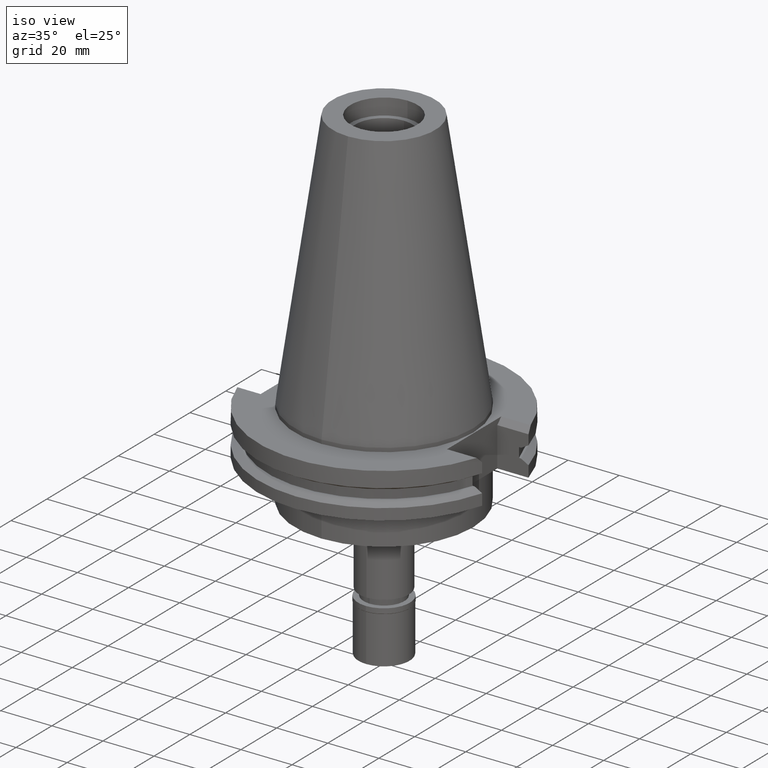
[diagram: clean part render]
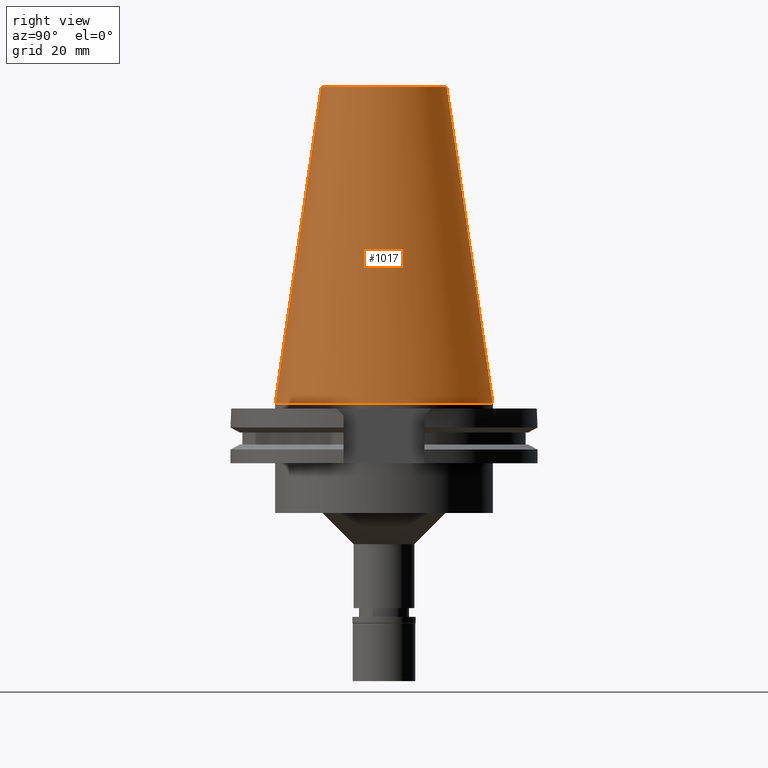
[diagram: tour spotlight — one face highlighted and labeled with its STEP entity id]
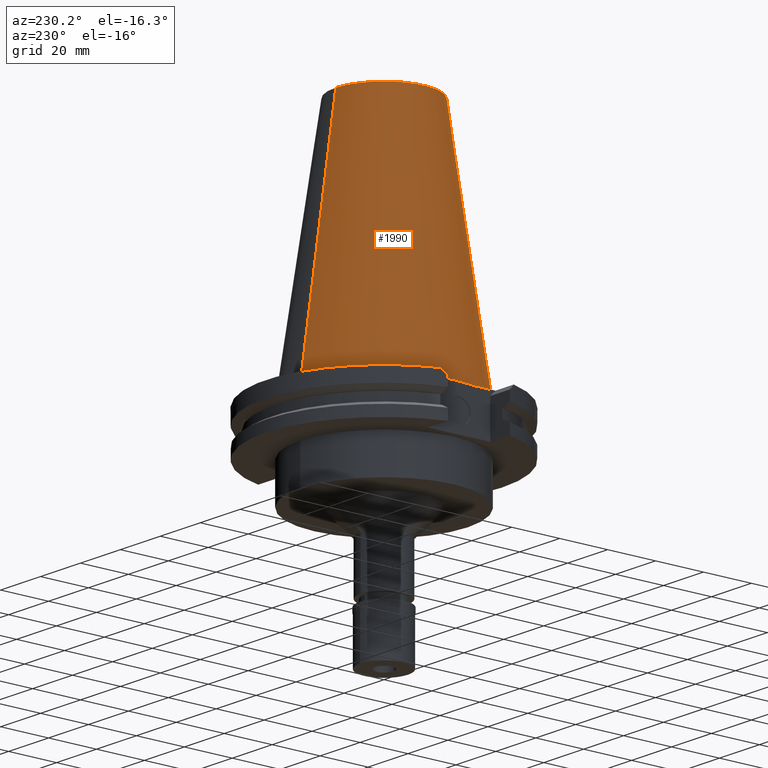
[diagram: tour spotlight — one face highlighted and labeled with its STEP entity id]
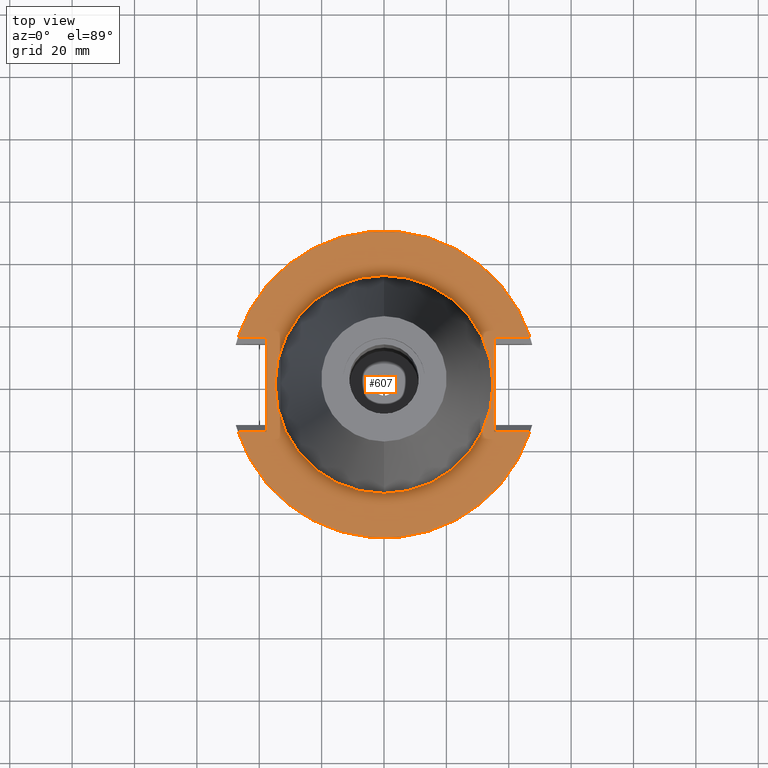
[diagram: tour spotlight — one face highlighted and labeled with its STEP entity id]
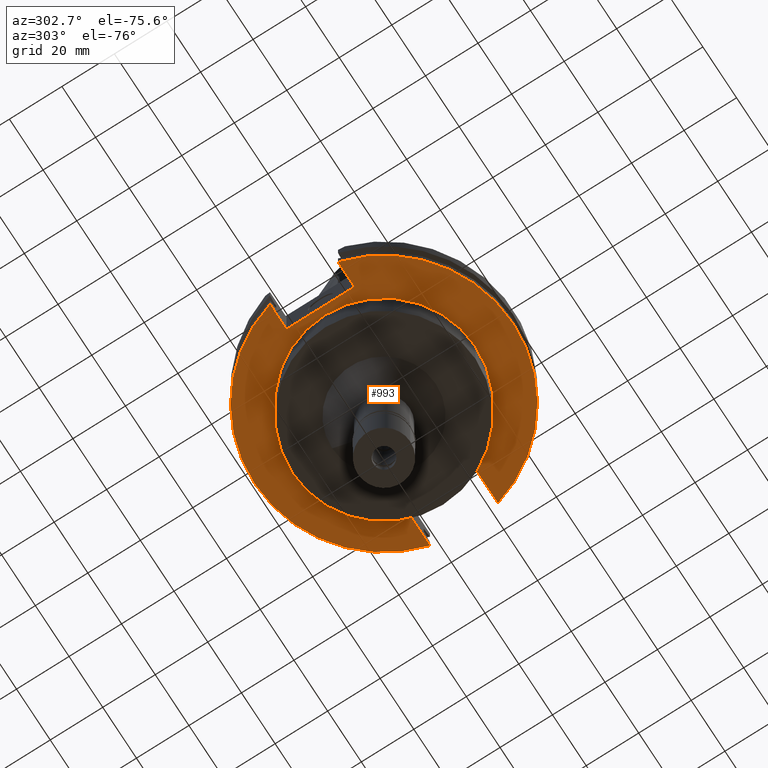
[diagram: tour spotlight — one face highlighted and labeled with its STEP entity id]
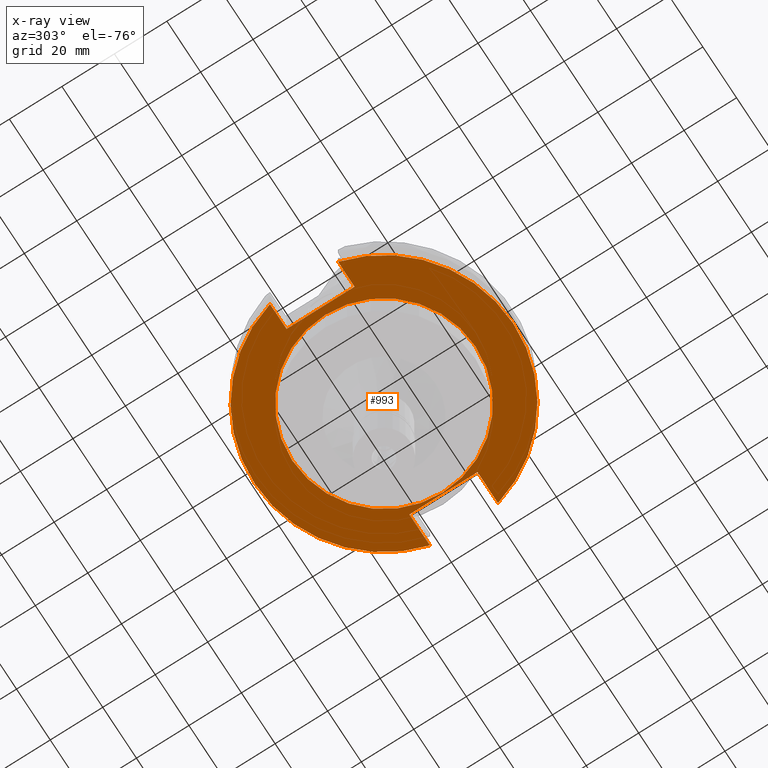
[diagram: x-ray of the same camera — body ghosted, this tour face saturated]
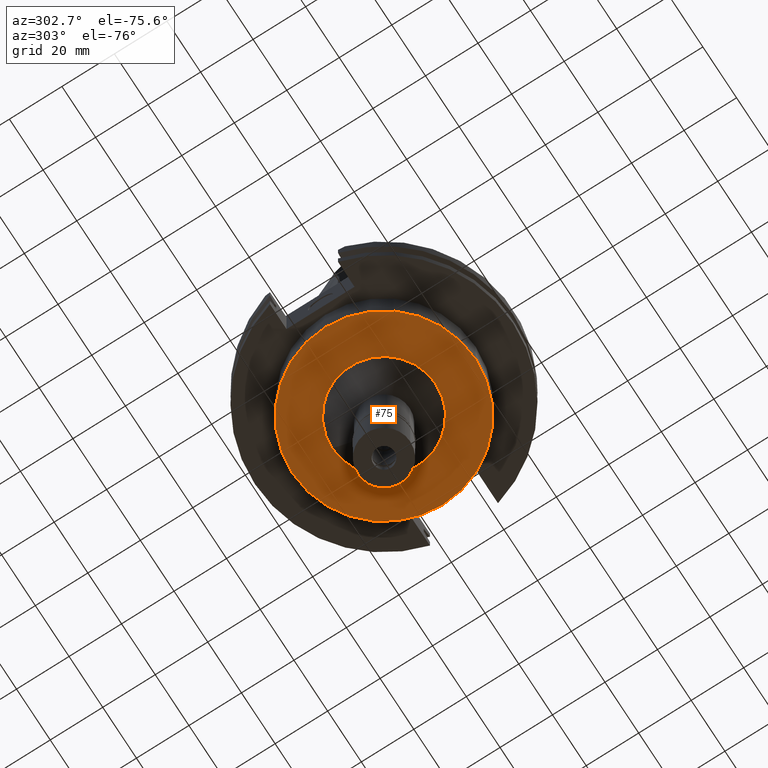
[diagram: tour spotlight — one face highlighted and labeled with its STEP entity id]
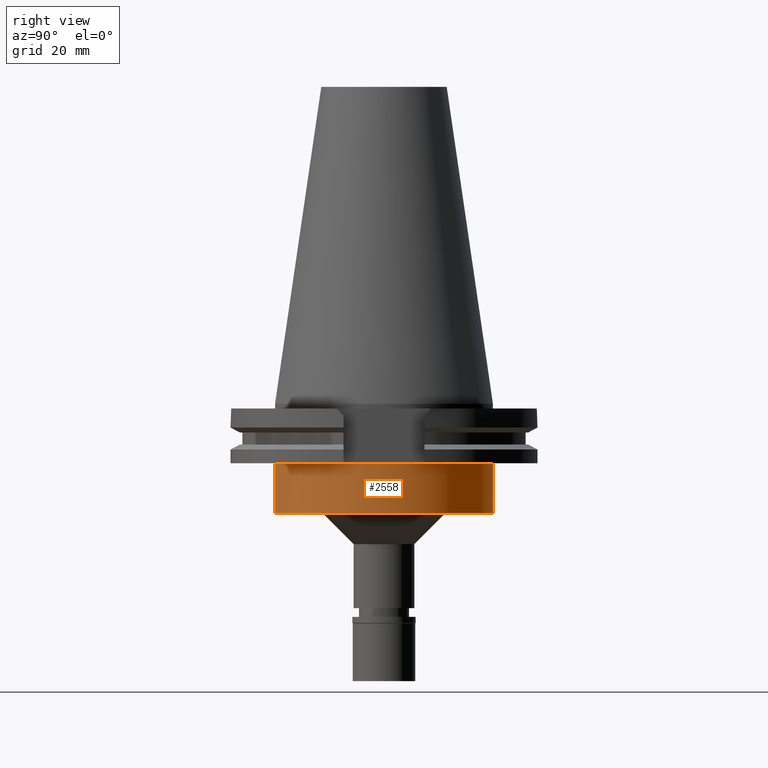
[diagram: tour spotlight — one face highlighted and labeled with its STEP entity id]
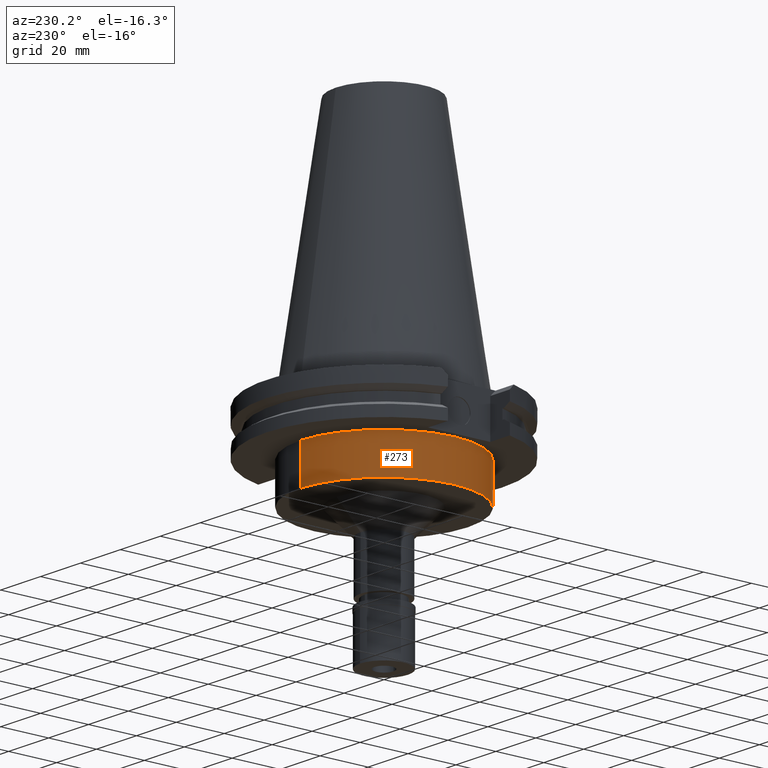
[diagram: tour spotlight — one face highlighted and labeled with its STEP entity id]
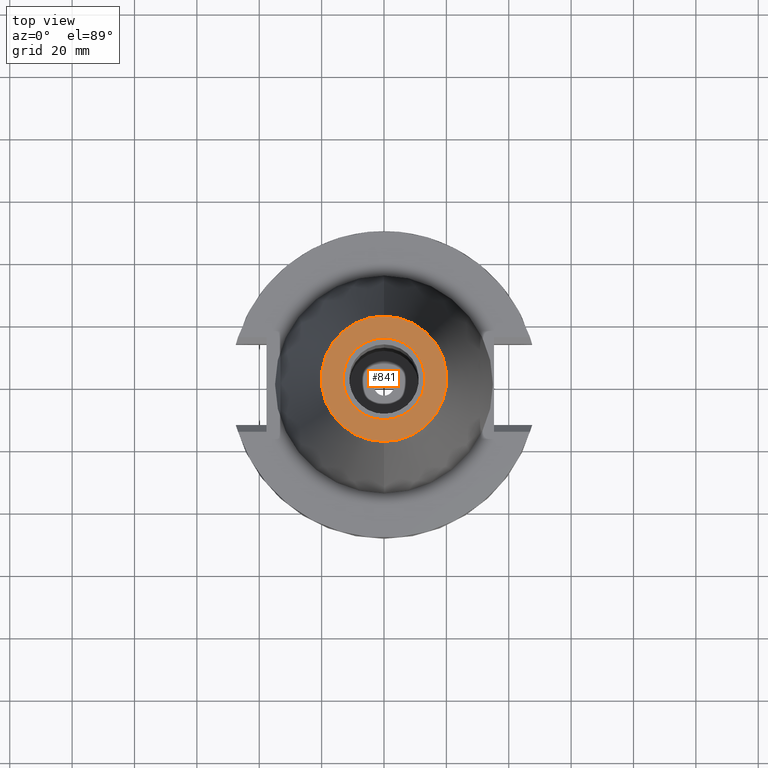
[diagram: tour spotlight — one face highlighted and labeled with its STEP entity id]
A machine part: a face-by-face anatomy tour. The part has 91 B-rep faces; the first image is the clean iso view, then the 8 largest visible faces are spotlighted one at a time (largest first), each with its STEP entity span.

Face 1 — right view, entity #1017. In plain terms, the highlighted conical surface has half-angle 8.297 deg.
Definition (entity closure, byte-faithful):
#56 = AXIS2_PLACEMENT_3D ( 'NONE', #1172, #3252, #1150 ) ;
#122 = FACE_OUTER_BOUND ( 'NONE', #179, .T. ) ;
#133 = DIRECTION ( 'NONE',  ( 0.0000000000000000000, -0.1443069799456937474, -0.9895329683941577192 ) ) ;
#136 = AXIS2_PLACEMENT_3D ( 'NONE', #2501, #1760, #1237 ) ;
#179 = EDGE_LOOP ( 'NONE', ( #1053, #690, #2577, #858 ) ) ;
#185 = DIRECTION ( 'NONE',  ( 0.0000000000000000000, 0.1443069799456937474, -0.9895329683941577192 ) ) ;
#365 = EDGE_CURVE ( 'NONE', #1043, #2549, #1960, .T. ) ;
#562 = VERTEX_POINT ( 'NONE', #2753 ) ;
#591 = EDGE_CURVE ( 'NONE', #562, #2549, #703, .T. ) ;
#648 = VECTOR ( 'NONE', #185, 1000.000000000000114 ) ;
#690 = ORIENTED_EDGE ( 'NONE', *, *, #365, .T. ) ;
#703 = CIRCLE ( 'NONE', #136, 34.92499999999999716 ) ;
#858 = ORIENTED_EDGE ( 'NONE', *, *, #3038, .F. ) ;
#946 = CARTESIAN_POINT ( 'NONE',  ( 0.0000000000000000000, -20.10832422387000307, 101.5999999999999943 ) ) ;
#1010 = AXIS2_PLACEMENT_3D ( 'NONE', #1129, #2386, #1408 ) ;
#1017 = ADVANCED_FACE ( 'NONE', ( #122 ), #1857, .T. ) ;
#1043 = VERTEX_POINT ( 'NONE', #3181 ) ;
#1053 = ORIENTED_EDGE ( 'NONE', *, *, #1922, .T. ) ;
#1129 = CARTESIAN_POINT ( 'NONE',  ( 0.0000000000000000000, 1.846767373113999857E-14, 50.79999999999999716 ) ) ;
#1150 = DIRECTION ( 'NONE',  ( 0.0000000000000000000, 1.000000000000000000, 0.0000000000000000000 ) ) ;
#1172 = CARTESIAN_POINT ( 'NONE',  ( 0.0000000000000000000, 1.846767373113999857E-14, 101.5999999999999943 ) ) ;
#1237 = DIRECTION ( 'NONE',  ( 0.0000000000000000000, 1.000000000000000000, 0.0000000000000000000 ) ) ;
#1315 = CARTESIAN_POINT ( 'NONE',  ( 0.0000000000000000000, 20.10832422388000040, 101.5999999999999943 ) ) ;
#1382 = CARTESIAN_POINT ( 'NONE',  ( 0.0000000000000000000, -34.92499999999999716, 4.192202140985000042E-13 ) ) ;
#1408 = DIRECTION ( 'NONE',  ( 0.0000000000000000000, -1.000000000000000000, 0.0000000000000000000 ) ) ;
#1435 = LINE ( 'NONE', #2722, #648 ) ;
#1569 = VERTEX_POINT ( 'NONE', #1315 ) ;
#1760 = DIRECTION ( 'NONE',  ( 0.0000000000000000000, 0.0000000000000000000, -1.000000000000000000 ) ) ;
#1857 = CONICAL_SURFACE ( 'NONE', #1010, 27.51666211194000056, 0.1448125860318199565 ) ;
#1922 = EDGE_CURVE ( 'NONE', #1569, #1043, #2086, .T. ) ;
#1960 = LINE ( 'NONE', #946, #2932 ) ;
#2086 = CIRCLE ( 'NONE', #56, 20.10832422388000040 ) ;
#2386 = DIRECTION ( 'NONE',  ( 0.0000000000000000000, 0.0000000000000000000, -1.000000000000000000 ) ) ;
#2501 = CARTESIAN_POINT ( 'NONE',  ( 0.0000000000000000000, 1.846767373113999857E-14, 7.389644451905000534E-13 ) ) ;
#2549 = VERTEX_POINT ( 'NONE', #1382 ) ;
#2577 = ORIENTED_EDGE ( 'NONE', *, *, #591, .F. ) ;
#2722 = CARTESIAN_POINT ( 'NONE',  ( 0.0000000000000000000, 20.10832422387000307, 101.5999999999999943 ) ) ;
#2753 = CARTESIAN_POINT ( 'NONE',  ( 0.0000000000000000000, 34.92499999999999716, 4.192202140985000042E-13 ) ) ;
#2932 = VECTOR ( 'NONE', #133, 1000.000000000000114 ) ;
#3038 = EDGE_CURVE ( 'NONE', #1569, #562, #1435, .T. ) ;
#3181 = CARTESIAN_POINT ( 'NONE',  ( 0.0000000000000000000, -20.10832422388000040, 101.5999999999999943 ) ) ;
#3252 = DIRECTION ( 'NONE',  ( 0.0000000000000000000, 0.0000000000000000000, -1.000000000000000000 ) ) ;

Face 2 — auxiliary view, entity #1990. In plain terms, the highlighted conical surface has half-angle 8.297 deg.
Definition (entity closure, byte-faithful):
#111 = AXIS2_PLACEMENT_3D ( 'NONE', #3027, #733, #2243 ) ;
#133 = DIRECTION ( 'NONE',  ( 0.0000000000000000000, -0.1443069799456937474, -0.9895329683941577192 ) ) ;
#174 = ORIENTED_EDGE ( 'NONE', *, *, #3038, .T. ) ;
#185 = DIRECTION ( 'NONE',  ( 0.0000000000000000000, 0.1443069799456937474, -0.9895329683941577192 ) ) ;
#365 = EDGE_CURVE ( 'NONE', #1043, #2549, #1960, .T. ) ;
#389 = CONICAL_SURFACE ( 'NONE', #2200, 27.51666211194000056, 0.1448125860318199565 ) ;
#482 = DIRECTION ( 'NONE',  ( 0.0000000000000000000, 0.0000000000000000000, -1.000000000000000000 ) ) ;
#562 = VERTEX_POINT ( 'NONE', #2753 ) ;
#648 = VECTOR ( 'NONE', #185, 1000.000000000000114 ) ;
#651 = CIRCLE ( 'NONE', #111, 34.92499999999999716 ) ;
#733 = DIRECTION ( 'NONE',  ( 0.0000000000000000000, 0.0000000000000000000, -1.000000000000000000 ) ) ;
#882 = ORIENTED_EDGE ( 'NONE', *, *, #1536, .T. ) ;
#918 = CARTESIAN_POINT ( 'NONE',  ( 0.0000000000000000000, 1.846767373113999857E-14, 50.79999999999999716 ) ) ;
#946 = CARTESIAN_POINT ( 'NONE',  ( 0.0000000000000000000, -20.10832422387000307, 101.5999999999999943 ) ) ;
#1043 = VERTEX_POINT ( 'NONE', #3181 ) ;
#1315 = CARTESIAN_POINT ( 'NONE',  ( 0.0000000000000000000, 20.10832422388000040, 101.5999999999999943 ) ) ;
#1382 = CARTESIAN_POINT ( 'NONE',  ( 0.0000000000000000000, -34.92499999999999716, 4.192202140985000042E-13 ) ) ;
#1435 = LINE ( 'NONE', #2722, #648 ) ;
#1536 = EDGE_CURVE ( 'NONE', #1043, #1569, #2157, .T. ) ;
#1569 = VERTEX_POINT ( 'NONE', #1315 ) ;
#1955 = DIRECTION ( 'NONE',  ( 0.0000000000000000000, -1.000000000000000000, 0.0000000000000000000 ) ) ;
#1960 = LINE ( 'NONE', #946, #2932 ) ;
#1990 = ADVANCED_FACE ( 'NONE', ( #2988 ), #389, .T. ) ;
#2083 = EDGE_CURVE ( 'NONE', #2549, #562, #651, .T. ) ;
#2105 = ORIENTED_EDGE ( 'NONE', *, *, #2083, .F. ) ;
#2157 = CIRCLE ( 'NONE', #3193, 20.10832422388000040 ) ;
#2200 = AXIS2_PLACEMENT_3D ( 'NONE', #918, #3213, #1955 ) ;
#2243 = DIRECTION ( 'NONE',  ( 0.0000000000000000000, -1.000000000000000000, 0.0000000000000000000 ) ) ;
#2284 = CARTESIAN_POINT ( 'NONE',  ( 0.0000000000000000000, 1.846767373113999857E-14, 101.5999999999999943 ) ) ;
#2410 = EDGE_LOOP ( 'NONE', ( #2105, #2837, #882, #174 ) ) ;
#2549 = VERTEX_POINT ( 'NONE', #1382 ) ;
#2722 = CARTESIAN_POINT ( 'NONE',  ( 0.0000000000000000000, 20.10832422387000307, 101.5999999999999943 ) ) ;
#2753 = CARTESIAN_POINT ( 'NONE',  ( 0.0000000000000000000, 34.92499999999999716, 4.192202140985000042E-13 ) ) ;
#2827 = DIRECTION ( 'NONE',  ( 0.0000000000000000000, -1.000000000000000000, 0.0000000000000000000 ) ) ;
#2837 = ORIENTED_EDGE ( 'NONE', *, *, #365, .F. ) ;
#2932 = VECTOR ( 'NONE', #133, 1000.000000000000114 ) ;
#2988 = FACE_OUTER_BOUND ( 'NONE', #2410, .T. ) ;
#3027 = CARTESIAN_POINT ( 'NONE',  ( 0.0000000000000000000, 1.846767373113999857E-14, 7.389644451905000534E-13 ) ) ;
#3038 = EDGE_CURVE ( 'NONE', #1569, #562, #1435, .T. ) ;
#3181 = CARTESIAN_POINT ( 'NONE',  ( 0.0000000000000000000, -20.10832422388000040, 101.5999999999999943 ) ) ;
#3193 = AXIS2_PLACEMENT_3D ( 'NONE', #2284, #482, #2827 ) ;
#3213 = DIRECTION ( 'NONE',  ( 0.0000000000000000000, 0.0000000000000000000, -1.000000000000000000 ) ) ;

Face 3 — top view, entity #607. In plain terms, the highlighted planar face has unit normal (0, 0, -1).
Definition (entity closure, byte-faithful):
#2 = DIRECTION ( 'NONE',  ( 0.0000000000000000000, -1.000000000000000000, 0.0000000000000000000 ) ) ;
#43 = VERTEX_POINT ( 'NONE', #472 ) ;
#121 = EDGE_CURVE ( 'NONE', #43, #2502, #711, .T. ) ;
#169 = DIRECTION ( 'NONE',  ( 0.0000000000000000000, -1.000000000000000000, 0.0000000000000000000 ) ) ;
#176 = DIRECTION ( 'NONE',  ( 0.0000000000000000000, 1.000000000000000000, 0.0000000000000000000 ) ) ;
#182 = CIRCLE ( 'NONE', #2048, 49.21249999999999858 ) ;
#192 = CARTESIAN_POINT ( 'NONE',  ( 0.0000000000000000000, 2.580636967502999935E-14, -1.500000000000000000 ) ) ;
#246 = DIRECTION ( 'NONE',  ( 0.0000000000000000000, 0.0000000000000000000, 1.000000000000000000 ) ) ;
#268 = LINE ( 'NONE', #1273, #2174 ) ;
#270 = EDGE_CURVE ( 'NONE', #43, #938, #1015, .T. ) ;
#280 = DIRECTION ( 'NONE',  ( 1.000000000000000000, 0.0000000000000000000, 0.0000000000000000000 ) ) ;
#380 = VERTEX_POINT ( 'NONE', #2443 ) ;
#410 = VERTEX_POINT ( 'NONE', #1945 ) ;
#435 = ORIENTED_EDGE ( 'NONE', *, *, #270, .F. ) ;
#472 = CARTESIAN_POINT ( 'NONE',  ( -37.67999999999999972, -15.15499999999999936, -1.500000000000000000 ) ) ;
#516 = AXIS2_PLACEMENT_3D ( 'NONE', #3006, #246, #1809 ) ;
#602 = VECTOR ( 'NONE', #1099, 1000.000000000000000 ) ;
#607 = ADVANCED_FACE ( 'NONE', ( #2047, #1510 ), #3299, .F. ) ;
#620 = CIRCLE ( 'NONE', #2497, 34.92499999999999716 ) ;
#653 = EDGE_CURVE ( 'NONE', #410, #1161, #2162, .T. ) ;
#684 = DIRECTION ( 'NONE',  ( 0.0000000000000000000, 0.0000000000000000000, 1.000000000000000000 ) ) ;
#711 = LINE ( 'NONE', #1187, #923 ) ;
#850 = CARTESIAN_POINT ( 'NONE',  ( 35.27000000000000313, 15.15499999999999936, -1.500000000000000000 ) ) ;
#889 = ORIENTED_EDGE ( 'NONE', *, *, #936, .T. ) ;
#923 = VECTOR ( 'NONE', #1429, 1000.000000000000000 ) ;
#936 = EDGE_CURVE ( 'NONE', #2757, #2770, #1048, .T. ) ;
#938 = VERTEX_POINT ( 'NONE', #2585 ) ;
#997 = CARTESIAN_POINT ( 'NONE',  ( 0.0000000000000000000, 1.206277097159999845E-14, -1.500000000000000000 ) ) ;
#1005 = EDGE_CURVE ( 'NONE', #2757, #1297, #268, .T. ) ;
#1015 = LINE ( 'NONE', #3043, #2873 ) ;
#1019 = ORIENTED_EDGE ( 'NONE', *, *, #653, .F. ) ;
#1048 = LINE ( 'NONE', #3085, #2369 ) ;
#1062 = CARTESIAN_POINT ( 'NONE',  ( -37.67999999999999972, 15.15499999999999936, -1.500000000000000000 ) ) ;
#1064 = ORIENTED_EDGE ( 'NONE', *, *, #2805, .F. ) ;
#1075 = CARTESIAN_POINT ( 'NONE',  ( 46.82089417396999664, 15.15499999999999936, -1.500000000000000000 ) ) ;
#1099 = DIRECTION ( 'NONE',  ( -1.000000000000000000, 0.0000000000000000000, 0.0000000000000000000 ) ) ;
#1161 = VERTEX_POINT ( 'NONE', #1344 ) ;
#1187 = CARTESIAN_POINT ( 'NONE',  ( -37.67999999999999972, -15.15499999999999936, -1.500000000000000000 ) ) ;
#1238 = CIRCLE ( 'NONE', #2206, 49.21249999999999858 ) ;
#1244 = DIRECTION ( 'NONE',  ( 0.0000000000000000000, -1.000000000000000000, 0.0000000000000000000 ) ) ;
#1273 = CARTESIAN_POINT ( 'NONE',  ( 35.27000000000000313, 15.15499999999999936, -1.500000000000000000 ) ) ;
#1274 = CARTESIAN_POINT ( 'NONE',  ( 35.27000000000000313, -15.15499999999999936, -1.500000000000000000 ) ) ;
#1297 = VERTEX_POINT ( 'NONE', #2635 ) ;
#1344 = CARTESIAN_POINT ( 'NONE',  ( 0.0000000000000000000, -34.92499999999999716, -1.500000000000000000 ) ) ;
#1351 = EDGE_CURVE ( 'NONE', #1161, #410, #620, .T. ) ;
#1383 = CARTESIAN_POINT ( 'NONE',  ( 46.82089417396999664, -15.15499999999999936, -1.500000000000000000 ) ) ;
#1429 = DIRECTION ( 'NONE',  ( -1.000000000000000000, 1.010519910753000113E-14, 0.0000000000000000000 ) ) ;
#1510 = FACE_BOUND ( 'NONE', #3211, .T. ) ;
#1547 = EDGE_CURVE ( 'NONE', #1297, #2441, #2056, .T. ) ;
#1686 = ORIENTED_EDGE ( 'NONE', *, *, #2801, .F. ) ;
#1687 = CARTESIAN_POINT ( 'NONE',  ( 0.0000000000000000000, 2.580636967502999935E-14, -1.500000000000000000 ) ) ;
#1692 = ORIENTED_EDGE ( 'NONE', *, *, #1351, .F. ) ;
#1741 = VECTOR ( 'NONE', #3304, 1000.000000000000000 ) ;
#1809 = DIRECTION ( 'NONE',  ( 0.0000000000000000000, 1.000000000000000000, 0.0000000000000000000 ) ) ;
#1865 = LINE ( 'NONE', #1062, #602 ) ;
#1904 = CARTESIAN_POINT ( 'NONE',  ( 0.0000000000000000000, 2.580636967502999935E-14, -1.500000000000000000 ) ) ;
#1945 = CARTESIAN_POINT ( 'NONE',  ( 0.0000000000000000000, 34.92499999999999716, -1.500000000000000000 ) ) ;
#1967 = EDGE_LOOP ( 'NONE', ( #2214, #1686, #3178, #2032, #889, #2398, #1064, #435 ) ) ;
#2032 = ORIENTED_EDGE ( 'NONE', *, *, #1005, .F. ) ;
#2047 = FACE_OUTER_BOUND ( 'NONE', #1967, .T. ) ;
#2048 = AXIS2_PLACEMENT_3D ( 'NONE', #1904, #2082, #2373 ) ;
#2056 = LINE ( 'NONE', #1274, #1741 ) ;
#2082 = DIRECTION ( 'NONE',  ( 0.0000000000000000000, 0.0000000000000000000, -1.000000000000000000 ) ) ;
#2162 = CIRCLE ( 'NONE', #516, 34.92499999999999716 ) ;
#2173 = CARTESIAN_POINT ( 'NONE',  ( -46.82089417396999664, -15.15499999999999936, -1.500000000000000000 ) ) ;
#2174 = VECTOR ( 'NONE', #2, 1000.000000000000000 ) ;
#2206 = AXIS2_PLACEMENT_3D ( 'NONE', #192, #2482, #176 ) ;
#2214 = ORIENTED_EDGE ( 'NONE', *, *, #121, .T. ) ;
#2369 = VECTOR ( 'NONE', #280, 1000.000000000000000 ) ;
#2373 = DIRECTION ( 'NONE',  ( 0.0000000000000000000, -1.000000000000000000, 0.0000000000000000000 ) ) ;
#2398 = ORIENTED_EDGE ( 'NONE', *, *, #2685, .F. ) ;
#2441 = VERTEX_POINT ( 'NONE', #1383 ) ;
#2443 = CARTESIAN_POINT ( 'NONE',  ( -46.82089417396999664, 15.15499999999999936, -1.500000000000000000 ) ) ;
#2482 = DIRECTION ( 'NONE',  ( 0.0000000000000000000, 0.0000000000000000000, -1.000000000000000000 ) ) ;
#2497 = AXIS2_PLACEMENT_3D ( 'NONE', #1687, #684, #169 ) ;
#2502 = VERTEX_POINT ( 'NONE', #2173 ) ;
#2585 = CARTESIAN_POINT ( 'NONE',  ( -37.67999999999999972, 15.15499999999999936, -1.500000000000000000 ) ) ;
#2593 = AXIS2_PLACEMENT_3D ( 'NONE', #997, #3262, #1244 ) ;
#2635 = CARTESIAN_POINT ( 'NONE',  ( 35.27000000000000313, -15.15499999999999936, -1.500000000000000000 ) ) ;
#2685 = EDGE_CURVE ( 'NONE', #380, #2770, #1238, .T. ) ;
#2757 = VERTEX_POINT ( 'NONE', #850 ) ;
#2770 = VERTEX_POINT ( 'NONE', #1075 ) ;
#2777 = DIRECTION ( 'NONE',  ( 0.0000000000000000000, 1.000000000000000000, 0.0000000000000000000 ) ) ;
#2801 = EDGE_CURVE ( 'NONE', #2441, #2502, #182, .T. ) ;
#2805 = EDGE_CURVE ( 'NONE', #938, #380, #1865, .T. ) ;
#2873 = VECTOR ( 'NONE', #2777, 1000.000000000000000 ) ;
#3006 = CARTESIAN_POINT ( 'NONE',  ( 0.0000000000000000000, 2.580636967502999935E-14, -1.500000000000000000 ) ) ;
#3043 = CARTESIAN_POINT ( 'NONE',  ( -37.67999999999999972, -15.15499999999999936, -1.500000000000000000 ) ) ;
#3085 = CARTESIAN_POINT ( 'NONE',  ( 35.27000000000000313, 15.15499999999999936, -1.500000000000000000 ) ) ;
#3178 = ORIENTED_EDGE ( 'NONE', *, *, #1547, .F. ) ;
#3211 = EDGE_LOOP ( 'NONE', ( #1019, #1692 ) ) ;
#3262 = DIRECTION ( 'NONE',  ( 0.0000000000000000000, 0.0000000000000000000, -1.000000000000000000 ) ) ;
#3299 = PLANE ( 'NONE',  #2593 ) ;
#3304 = DIRECTION ( 'NONE',  ( 1.000000000000000000, 0.0000000000000000000, 0.0000000000000000000 ) ) ;

Face 4 — auxiliary view, entity #993. An x-ray twin of the same camera follows (body ghosted, this face saturated) — the face is partly hidden behind the body. In plain terms, the highlighted planar face has unit normal (0, 0, -1).
Definition (entity closure, byte-faithful):
#23 = EDGE_LOOP ( 'NONE', ( #152, #2374, #2610, #404, #1939, #634, #2014, #2477 ) ) ;
#26 = VECTOR ( 'NONE', #1211, 1000.000000000000000 ) ;
#34 = CARTESIAN_POINT ( 'NONE',  ( 0.0000000000000000000, -34.92499999999999716, -19.05000000000000071 ) ) ;
#40 = CARTESIAN_POINT ( 'NONE',  ( 0.0000000000000000000, 34.92499999999999716, -19.05000000000000071 ) ) ;
#67 = FACE_BOUND ( 'NONE', #431, .T. ) ;
#97 = EDGE_CURVE ( 'NONE', #944, #667, #1601, .T. ) ;
#109 = VECTOR ( 'NONE', #1644, 1000.000000000000000 ) ;
#144 = CIRCLE ( 'NONE', #2280, 49.21249999999999858 ) ;
#152 = ORIENTED_EDGE ( 'NONE', *, *, #1840, .T. ) ;
#228 = DIRECTION ( 'NONE',  ( -1.000000000000000000, -1.795085297572000011E-14, 0.0000000000000000000 ) ) ;
#404 = ORIENTED_EDGE ( 'NONE', *, *, #2210, .T. ) ;
#431 = EDGE_LOOP ( 'NONE', ( #1561, #1682 ) ) ;
#436 = EDGE_CURVE ( 'NONE', #2217, #2368, #2822, .T. ) ;
#489 = AXIS2_PLACEMENT_3D ( 'NONE', #2499, #953, #2949 ) ;
#496 = VECTOR ( 'NONE', #788, 1000.000000000000000 ) ;
#532 = DIRECTION ( 'NONE',  ( 0.0000000000000000000, -1.000000000000000000, 0.0000000000000000000 ) ) ;
#628 = VERTEX_POINT ( 'NONE', #781 ) ;
#633 = DIRECTION ( 'NONE',  ( 0.0000000000000000000, 1.000000000000000000, 0.0000000000000000000 ) ) ;
#634 = ORIENTED_EDGE ( 'NONE', *, *, #1222, .F. ) ;
#667 = VERTEX_POINT ( 'NONE', #40 ) ;
#668 = LINE ( 'NONE', #3254, #26 ) ;
#671 = CARTESIAN_POINT ( 'NONE',  ( 0.0000000000000000000, 2.580636967502999935E-14, -19.05000000000000071 ) ) ;
#683 = CARTESIAN_POINT ( 'NONE',  ( -37.67999999999999972, -12.95500000000000007, -19.05000000000000071 ) ) ;
#781 = CARTESIAN_POINT ( 'NONE',  ( -47.47671146204000081, -12.95500000000000007, -19.05000000000000071 ) ) ;
#784 = VECTOR ( 'NONE', #2630, 1000.000000000000000 ) ;
#788 = DIRECTION ( 'NONE',  ( 0.0000000000000000000, 1.000000000000000000, 0.0000000000000000000 ) ) ;
#799 = CARTESIAN_POINT ( 'NONE',  ( -37.67999999999999972, -12.95500000000000007, -19.05000000000000071 ) ) ;
#848 = LINE ( 'NONE', #1863, #784 ) ;
#917 = VERTEX_POINT ( 'NONE', #1752 ) ;
#942 = LINE ( 'NONE', #2956, #109 ) ;
#944 = VERTEX_POINT ( 'NONE', #34 ) ;
#953 = DIRECTION ( 'NONE',  ( 0.0000000000000000000, 0.0000000000000000000, -1.000000000000000000 ) ) ;
#993 = ADVANCED_FACE ( 'NONE', ( #2355, #67 ), #1083, .T. ) ;
#1083 = PLANE ( 'NONE',  #2022 ) ;
#1211 = DIRECTION ( 'NONE',  ( 1.000000000000000000, -1.411572756165000194E-14, 0.0000000000000000000 ) ) ;
#1222 = EDGE_CURVE ( 'NONE', #628, #2963, #144, .T. ) ;
#1287 = AXIS2_PLACEMENT_3D ( 'NONE', #3267, #1981, #3007 ) ;
#1320 = CARTESIAN_POINT ( 'NONE',  ( 0.0000000000000000000, 2.580636967502999935E-14, -19.05000000000000071 ) ) ;
#1330 = CARTESIAN_POINT ( 'NONE',  ( -47.47671146204000081, 12.95500000000000007, -19.05000000000000071 ) ) ;
#1339 = EDGE_CURVE ( 'NONE', #2393, #2963, #668, .T. ) ;
#1377 = AXIS2_PLACEMENT_3D ( 'NONE', #671, #1653, #633 ) ;
#1526 = CARTESIAN_POINT ( 'NONE',  ( 47.47671146204000081, 12.95500000000000007, -19.05000000000000071 ) ) ;
#1561 = ORIENTED_EDGE ( 'NONE', *, *, #2049, .F. ) ;
#1601 = CIRCLE ( 'NONE', #489, 34.92499999999999716 ) ;
#1632 = EDGE_CURVE ( 'NONE', #2951, #2485, #2313, .T. ) ;
#1644 = DIRECTION ( 'NONE',  ( 1.000000000000000000, 1.455229645530999953E-14, 0.0000000000000000000 ) ) ;
#1653 = DIRECTION ( 'NONE',  ( 0.0000000000000000000, 0.0000000000000000000, 1.000000000000000000 ) ) ;
#1682 = ORIENTED_EDGE ( 'NONE', *, *, #97, .F. ) ;
#1752 = CARTESIAN_POINT ( 'NONE',  ( 35.27000000000000313, 12.95500000000000007, -19.05000000000000071 ) ) ;
#1811 = DIRECTION ( 'NONE',  ( 0.0000000000000000000, -1.000000000000000000, 0.0000000000000000000 ) ) ;
#1840 = EDGE_CURVE ( 'NONE', #2485, #2368, #848, .T. ) ;
#1863 = CARTESIAN_POINT ( 'NONE',  ( -37.67999999999999972, 12.95500000000000007, -19.05000000000000071 ) ) ;
#1939 = ORIENTED_EDGE ( 'NONE', *, *, #1339, .T. ) ;
#1981 = DIRECTION ( 'NONE',  ( 0.0000000000000000000, 0.0000000000000000000, -1.000000000000000000 ) ) ;
#2014 = ORIENTED_EDGE ( 'NONE', *, *, #2132, .F. ) ;
#2022 = AXIS2_PLACEMENT_3D ( 'NONE', #3148, #2553, #532 ) ;
#2049 = EDGE_CURVE ( 'NONE', #667, #944, #2741, .T. ) ;
#2050 = LINE ( 'NONE', #2516, #2409 ) ;
#2060 = CARTESIAN_POINT ( 'NONE',  ( 35.27000000000000313, 12.95500000000000007, -19.05000000000000071 ) ) ;
#2132 = EDGE_CURVE ( 'NONE', #2951, #628, #2050, .T. ) ;
#2210 = EDGE_CURVE ( 'NONE', #917, #2393, #2295, .T. ) ;
#2217 = VERTEX_POINT ( 'NONE', #1526 ) ;
#2280 = AXIS2_PLACEMENT_3D ( 'NONE', #1320, #3188, #2669 ) ;
#2295 = LINE ( 'NONE', #2060, #2621 ) ;
#2313 = LINE ( 'NONE', #799, #496 ) ;
#2355 = FACE_OUTER_BOUND ( 'NONE', #23, .T. ) ;
#2368 = VERTEX_POINT ( 'NONE', #1330 ) ;
#2374 = ORIENTED_EDGE ( 'NONE', *, *, #436, .F. ) ;
#2393 = VERTEX_POINT ( 'NONE', #2595 ) ;
#2409 = VECTOR ( 'NONE', #228, 1000.000000000000000 ) ;
#2477 = ORIENTED_EDGE ( 'NONE', *, *, #1632, .T. ) ;
#2485 = VERTEX_POINT ( 'NONE', #2890 ) ;
#2499 = CARTESIAN_POINT ( 'NONE',  ( 0.0000000000000000000, 2.580636967502999935E-14, -19.05000000000000071 ) ) ;
#2516 = CARTESIAN_POINT ( 'NONE',  ( -37.67999999999999972, -12.95500000000000007, -19.05000000000000071 ) ) ;
#2553 = DIRECTION ( 'NONE',  ( 0.0000000000000000000, 0.0000000000000000000, -1.000000000000000000 ) ) ;
#2595 = CARTESIAN_POINT ( 'NONE',  ( 35.27000000000000313, -12.95500000000000007, -19.05000000000000071 ) ) ;
#2610 = ORIENTED_EDGE ( 'NONE', *, *, #3025, .F. ) ;
#2621 = VECTOR ( 'NONE', #1811, 1000.000000000000000 ) ;
#2630 = DIRECTION ( 'NONE',  ( -1.000000000000000000, 1.813217472294999948E-14, 0.0000000000000000000 ) ) ;
#2669 = DIRECTION ( 'NONE',  ( 0.0000000000000000000, -1.000000000000000000, 0.0000000000000000000 ) ) ;
#2741 = CIRCLE ( 'NONE', #1287, 34.92499999999999716 ) ;
#2822 = CIRCLE ( 'NONE', #1377, 49.21249999999999858 ) ;
#2890 = CARTESIAN_POINT ( 'NONE',  ( -37.67999999999999972, 12.95500000000000007, -19.05000000000000071 ) ) ;
#2949 = DIRECTION ( 'NONE',  ( 0.0000000000000000000, -1.000000000000000000, 0.0000000000000000000 ) ) ;
#2951 = VERTEX_POINT ( 'NONE', #683 ) ;
#2956 = CARTESIAN_POINT ( 'NONE',  ( 35.27000000000000313, 12.95500000000000007, -19.05000000000000071 ) ) ;
#2963 = VERTEX_POINT ( 'NONE', #3239 ) ;
#3007 = DIRECTION ( 'NONE',  ( 0.0000000000000000000, 1.000000000000000000, 0.0000000000000000000 ) ) ;
#3025 = EDGE_CURVE ( 'NONE', #917, #2217, #942, .T. ) ;
#3148 = CARTESIAN_POINT ( 'NONE',  ( 0.0000000000000000000, 0.0000000000000000000, -19.05000000000000071 ) ) ;
#3188 = DIRECTION ( 'NONE',  ( 0.0000000000000000000, 0.0000000000000000000, 1.000000000000000000 ) ) ;
#3239 = CARTESIAN_POINT ( 'NONE',  ( 47.47671146204000081, -12.95500000000000007, -19.05000000000000071 ) ) ;
#3254 = CARTESIAN_POINT ( 'NONE',  ( 35.27000000000000313, -12.95500000000000007, -19.05000000000000071 ) ) ;
#3267 = CARTESIAN_POINT ( 'NONE',  ( 0.0000000000000000000, 2.580636967502999935E-14, -19.05000000000000071 ) ) ;

Face 5 — auxiliary view, entity #75. In plain terms, the highlighted planar face has unit normal (0, 0, -1).
Definition (entity closure, byte-faithful):
#64 = CIRCLE ( 'NONE', #3126, 19.75000000000000000 ) ;
#75 = ADVANCED_FACE ( 'NONE', ( #2299, #3129 ), #2828, .T. ) ;
#327 = AXIS2_PLACEMENT_3D ( 'NONE', #2863, #2285, #2335 ) ;
#420 = CARTESIAN_POINT ( 'NONE',  ( 0.0000000000000000000, -34.92499999999999716, -35.00000000000000000 ) ) ;
#458 = EDGE_CURVE ( 'NONE', #1935, #617, #3273, .T. ) ;
#464 = ORIENTED_EDGE ( 'NONE', *, *, #3225, .F. ) ;
#569 = EDGE_LOOP ( 'NONE', ( #1588, #1114 ) ) ;
#617 = VERTEX_POINT ( 'NONE', #712 ) ;
#686 = DIRECTION ( 'NONE',  ( 0.0000000000000000000, 0.0000000000000000000, 1.000000000000000000 ) ) ;
#696 = DIRECTION ( 'NONE',  ( 0.0000000000000000000, 0.0000000000000000000, -1.000000000000000000 ) ) ;
#712 = CARTESIAN_POINT ( 'NONE',  ( 0.0000000000000000000, 34.92499999999999716, -35.00000000000000000 ) ) ;
#774 = DIRECTION ( 'NONE',  ( 0.0000000000000000000, 1.000000000000000000, 0.0000000000000000000 ) ) ;
#796 = CARTESIAN_POINT ( 'NONE',  ( 0.0000000000000000000, 19.75000000000000000, -35.00000000000000000 ) ) ;
#972 = EDGE_LOOP ( 'NONE', ( #464, #1861 ) ) ;
#989 = DIRECTION ( 'NONE',  ( 0.0000000000000000000, 1.000000000000000000, 0.0000000000000000000 ) ) ;
#990 = CARTESIAN_POINT ( 'NONE',  ( 0.0000000000000000000, 0.0000000000000000000, -35.00000000000000000 ) ) ;
#1114 = ORIENTED_EDGE ( 'NONE', *, *, #3017, .F. ) ;
#1399 = DIRECTION ( 'NONE',  ( 0.0000000000000000000, -1.000000000000000000, 0.0000000000000000000 ) ) ;
#1505 = AXIS2_PLACEMENT_3D ( 'NONE', #2021, #3063, #989 ) ;
#1515 = EDGE_CURVE ( 'NONE', #2176, #1878, #64, .T. ) ;
#1588 = ORIENTED_EDGE ( 'NONE', *, *, #1515, .F. ) ;
#1662 = CIRCLE ( 'NONE', #1505, 34.92499999999999716 ) ;
#1690 = CARTESIAN_POINT ( 'NONE',  ( 0.0000000000000000000, 2.580636967502999935E-14, -35.00000000000000000 ) ) ;
#1861 = ORIENTED_EDGE ( 'NONE', *, *, #458, .F. ) ;
#1878 = VERTEX_POINT ( 'NONE', #2666 ) ;
#1935 = VERTEX_POINT ( 'NONE', #420 ) ;
#2021 = CARTESIAN_POINT ( 'NONE',  ( 0.0000000000000000000, 2.580636967502999935E-14, -35.00000000000000000 ) ) ;
#2176 = VERTEX_POINT ( 'NONE', #796 ) ;
#2197 = CIRCLE ( 'NONE', #2947, 19.75000000000000000 ) ;
#2285 = DIRECTION ( 'NONE',  ( 0.0000000000000000000, 0.0000000000000000000, -1.000000000000000000 ) ) ;
#2299 = FACE_OUTER_BOUND ( 'NONE', #972, .T. ) ;
#2335 = DIRECTION ( 'NONE',  ( 0.0000000000000000000, -1.000000000000000000, 0.0000000000000000000 ) ) ;
#2454 = DIRECTION ( 'NONE',  ( 0.0000000000000000000, -1.000000000000000000, 0.0000000000000000000 ) ) ;
#2666 = CARTESIAN_POINT ( 'NONE',  ( 0.0000000000000000000, -19.75000000000000000, -35.00000000000000000 ) ) ;
#2828 = PLANE ( 'NONE',  #327 ) ;
#2863 = CARTESIAN_POINT ( 'NONE',  ( 0.0000000000000000000, 0.0000000000000000000, -35.00000000000000000 ) ) ;
#2947 = AXIS2_PLACEMENT_3D ( 'NONE', #3200, #696, #2454 ) ;
#3017 = EDGE_CURVE ( 'NONE', #1878, #2176, #2197, .T. ) ;
#3063 = DIRECTION ( 'NONE',  ( 0.0000000000000000000, 0.0000000000000000000, 1.000000000000000000 ) ) ;
#3064 = DIRECTION ( 'NONE',  ( 0.0000000000000000000, 0.0000000000000000000, -1.000000000000000000 ) ) ;
#3101 = AXIS2_PLACEMENT_3D ( 'NONE', #1690, #686, #1399 ) ;
#3126 = AXIS2_PLACEMENT_3D ( 'NONE', #990, #3064, #774 ) ;
#3129 = FACE_BOUND ( 'NONE', #569, .T. ) ;
#3200 = CARTESIAN_POINT ( 'NONE',  ( 0.0000000000000000000, 0.0000000000000000000, -35.00000000000000000 ) ) ;
#3225 = EDGE_CURVE ( 'NONE', #617, #1935, #1662, .T. ) ;
#3273 = CIRCLE ( 'NONE', #3101, 34.92499999999999716 ) ;

Face 6 — right view, entity #2558. In plain terms, the highlighted cylindrical surface (partial cylindrical patch) has radius 34.925 mm, axis along (0, 0, -1).
Definition (entity closure, byte-faithful):
#34 = CARTESIAN_POINT ( 'NONE',  ( 0.0000000000000000000, -34.92499999999999716, -19.05000000000000071 ) ) ;
#40 = CARTESIAN_POINT ( 'NONE',  ( 0.0000000000000000000, 34.92499999999999716, -19.05000000000000071 ) ) ;
#106 = ORIENTED_EDGE ( 'NONE', *, *, #458, .T. ) ;
#304 = ORIENTED_EDGE ( 'NONE', *, *, #2049, .T. ) ;
#420 = CARTESIAN_POINT ( 'NONE',  ( 0.0000000000000000000, -34.92499999999999716, -35.00000000000000000 ) ) ;
#458 = EDGE_CURVE ( 'NONE', #1935, #617, #3273, .T. ) ;
#617 = VERTEX_POINT ( 'NONE', #712 ) ;
#618 = CARTESIAN_POINT ( 'NONE',  ( 0.0000000000000000000, 2.580636967502999935E-14, 110.7250000000000085 ) ) ;
#667 = VERTEX_POINT ( 'NONE', #40 ) ;
#686 = DIRECTION ( 'NONE',  ( 0.0000000000000000000, 0.0000000000000000000, 1.000000000000000000 ) ) ;
#712 = CARTESIAN_POINT ( 'NONE',  ( 0.0000000000000000000, 34.92499999999999716, -35.00000000000000000 ) ) ;
#768 = CARTESIAN_POINT ( 'NONE',  ( 0.0000000000000000000, -34.92499999999999716, -19.05000000000000071 ) ) ;
#928 = VECTOR ( 'NONE', #1221, 1000.000000000000000 ) ;
#944 = VERTEX_POINT ( 'NONE', #34 ) ;
#1221 = DIRECTION ( 'NONE',  ( 0.0000000000000000000, 0.0000000000000000000, -1.000000000000000000 ) ) ;
#1280 = EDGE_CURVE ( 'NONE', #667, #617, #2115, .T. ) ;
#1287 = AXIS2_PLACEMENT_3D ( 'NONE', #3267, #1981, #3007 ) ;
#1399 = DIRECTION ( 'NONE',  ( 0.0000000000000000000, -1.000000000000000000, 0.0000000000000000000 ) ) ;
#1405 = DIRECTION ( 'NONE',  ( 0.0000000000000000000, 0.0000000000000000000, -1.000000000000000000 ) ) ;
#1511 = AXIS2_PLACEMENT_3D ( 'NONE', #618, #1405, #2366 ) ;
#1590 = EDGE_LOOP ( 'NONE', ( #304, #2218, #106, #2719 ) ) ;
#1690 = CARTESIAN_POINT ( 'NONE',  ( 0.0000000000000000000, 2.580636967502999935E-14, -35.00000000000000000 ) ) ;
#1935 = VERTEX_POINT ( 'NONE', #420 ) ;
#1981 = DIRECTION ( 'NONE',  ( 0.0000000000000000000, 0.0000000000000000000, -1.000000000000000000 ) ) ;
#2049 = EDGE_CURVE ( 'NONE', #667, #944, #2741, .T. ) ;
#2115 = LINE ( 'NONE', #2375, #3040 ) ;
#2186 = EDGE_CURVE ( 'NONE', #944, #1935, #2781, .T. ) ;
#2218 = ORIENTED_EDGE ( 'NONE', *, *, #2186, .T. ) ;
#2366 = DIRECTION ( 'NONE',  ( 0.0000000000000000000, -1.000000000000000000, 0.0000000000000000000 ) ) ;
#2375 = CARTESIAN_POINT ( 'NONE',  ( 0.0000000000000000000, 34.92499999999999716, -19.05000000000000071 ) ) ;
#2404 = FACE_OUTER_BOUND ( 'NONE', #1590, .T. ) ;
#2558 = ADVANCED_FACE ( 'NONE', ( #2404 ), #3209, .T. ) ;
#2719 = ORIENTED_EDGE ( 'NONE', *, *, #1280, .F. ) ;
#2741 = CIRCLE ( 'NONE', #1287, 34.92499999999999716 ) ;
#2781 = LINE ( 'NONE', #768, #928 ) ;
#2903 = DIRECTION ( 'NONE',  ( 0.0000000000000000000, 0.0000000000000000000, -1.000000000000000000 ) ) ;
#3007 = DIRECTION ( 'NONE',  ( 0.0000000000000000000, 1.000000000000000000, 0.0000000000000000000 ) ) ;
#3040 = VECTOR ( 'NONE', #2903, 1000.000000000000000 ) ;
#3101 = AXIS2_PLACEMENT_3D ( 'NONE', #1690, #686, #1399 ) ;
#3209 = CYLINDRICAL_SURFACE ( 'NONE', #1511, 34.92499999999999716 ) ;
#3267 = CARTESIAN_POINT ( 'NONE',  ( 0.0000000000000000000, 2.580636967502999935E-14, -19.05000000000000071 ) ) ;
#3273 = CIRCLE ( 'NONE', #3101, 34.92499999999999716 ) ;

Face 7 — auxiliary view, entity #273. In plain terms, the highlighted cylindrical surface (partial cylindrical patch) has radius 34.925 mm, axis along (0, 0, -1).
Definition (entity closure, byte-faithful):
#34 = CARTESIAN_POINT ( 'NONE',  ( 0.0000000000000000000, -34.92499999999999716, -19.05000000000000071 ) ) ;
#40 = CARTESIAN_POINT ( 'NONE',  ( 0.0000000000000000000, 34.92499999999999716, -19.05000000000000071 ) ) ;
#97 = EDGE_CURVE ( 'NONE', #944, #667, #1601, .T. ) ;
#273 = ADVANCED_FACE ( 'NONE', ( #763 ), #2547, .T. ) ;
#420 = CARTESIAN_POINT ( 'NONE',  ( 0.0000000000000000000, -34.92499999999999716, -35.00000000000000000 ) ) ;
#489 = AXIS2_PLACEMENT_3D ( 'NONE', #2499, #953, #2949 ) ;
#492 = ORIENTED_EDGE ( 'NONE', *, *, #1280, .T. ) ;
#617 = VERTEX_POINT ( 'NONE', #712 ) ;
#667 = VERTEX_POINT ( 'NONE', #40 ) ;
#712 = CARTESIAN_POINT ( 'NONE',  ( 0.0000000000000000000, 34.92499999999999716, -35.00000000000000000 ) ) ;
#763 = FACE_OUTER_BOUND ( 'NONE', #1929, .T. ) ;
#768 = CARTESIAN_POINT ( 'NONE',  ( 0.0000000000000000000, -34.92499999999999716, -19.05000000000000071 ) ) ;
#795 = CARTESIAN_POINT ( 'NONE',  ( 0.0000000000000000000, 2.580636967502999935E-14, 110.7250000000000085 ) ) ;
#928 = VECTOR ( 'NONE', #1221, 1000.000000000000000 ) ;
#944 = VERTEX_POINT ( 'NONE', #34 ) ;
#953 = DIRECTION ( 'NONE',  ( 0.0000000000000000000, 0.0000000000000000000, -1.000000000000000000 ) ) ;
#964 = ORIENTED_EDGE ( 'NONE', *, *, #2186, .F. ) ;
#989 = DIRECTION ( 'NONE',  ( 0.0000000000000000000, 1.000000000000000000, 0.0000000000000000000 ) ) ;
#1221 = DIRECTION ( 'NONE',  ( 0.0000000000000000000, 0.0000000000000000000, -1.000000000000000000 ) ) ;
#1265 = DIRECTION ( 'NONE',  ( 0.0000000000000000000, 0.0000000000000000000, -1.000000000000000000 ) ) ;
#1270 = AXIS2_PLACEMENT_3D ( 'NONE', #795, #1265, #2813 ) ;
#1280 = EDGE_CURVE ( 'NONE', #667, #617, #2115, .T. ) ;
#1505 = AXIS2_PLACEMENT_3D ( 'NONE', #2021, #3063, #989 ) ;
#1601 = CIRCLE ( 'NONE', #489, 34.92499999999999716 ) ;
#1662 = CIRCLE ( 'NONE', #1505, 34.92499999999999716 ) ;
#1710 = ORIENTED_EDGE ( 'NONE', *, *, #97, .T. ) ;
#1929 = EDGE_LOOP ( 'NONE', ( #2152, #964, #1710, #492 ) ) ;
#1935 = VERTEX_POINT ( 'NONE', #420 ) ;
#2021 = CARTESIAN_POINT ( 'NONE',  ( 0.0000000000000000000, 2.580636967502999935E-14, -35.00000000000000000 ) ) ;
#2115 = LINE ( 'NONE', #2375, #3040 ) ;
#2152 = ORIENTED_EDGE ( 'NONE', *, *, #3225, .T. ) ;
#2186 = EDGE_CURVE ( 'NONE', #944, #1935, #2781, .T. ) ;
#2375 = CARTESIAN_POINT ( 'NONE',  ( 0.0000000000000000000, 34.92499999999999716, -19.05000000000000071 ) ) ;
#2499 = CARTESIAN_POINT ( 'NONE',  ( 0.0000000000000000000, 2.580636967502999935E-14, -19.05000000000000071 ) ) ;
#2547 = CYLINDRICAL_SURFACE ( 'NONE', #1270, 34.92499999999999716 ) ;
#2781 = LINE ( 'NONE', #768, #928 ) ;
#2813 = DIRECTION ( 'NONE',  ( 0.0000000000000000000, -1.000000000000000000, 0.0000000000000000000 ) ) ;
#2903 = DIRECTION ( 'NONE',  ( 0.0000000000000000000, 0.0000000000000000000, -1.000000000000000000 ) ) ;
#2949 = DIRECTION ( 'NONE',  ( 0.0000000000000000000, -1.000000000000000000, 0.0000000000000000000 ) ) ;
#3040 = VECTOR ( 'NONE', #2903, 1000.000000000000000 ) ;
#3063 = DIRECTION ( 'NONE',  ( 0.0000000000000000000, 0.0000000000000000000, 1.000000000000000000 ) ) ;
#3225 = EDGE_CURVE ( 'NONE', #617, #1935, #1662, .T. ) ;

Face 8 — top view, entity #841. In plain terms, the highlighted planar face has unit normal (0, 0, -1).
Definition (entity closure, byte-faithful):
#56 = AXIS2_PLACEMENT_3D ( 'NONE', #1172, #3252, #1150 ) ;
#292 = VERTEX_POINT ( 'NONE', #3076 ) ;
#354 = DIRECTION ( 'NONE',  ( 0.0000000000000000000, 0.0000000000000000000, 1.000000000000000000 ) ) ;
#385 = CARTESIAN_POINT ( 'NONE',  ( 0.0000000000000000000, 13.11500000000000021, 101.5999999999999943 ) ) ;
#414 = AXIS2_PLACEMENT_3D ( 'NONE', #2589, #1295, #538 ) ;
#482 = DIRECTION ( 'NONE',  ( 0.0000000000000000000, 0.0000000000000000000, -1.000000000000000000 ) ) ;
#538 = DIRECTION ( 'NONE',  ( 0.0000000000000000000, -1.000000000000000000, 0.0000000000000000000 ) ) ;
#635 = EDGE_CURVE ( 'NONE', #1223, #292, #1142, .T. ) ;
#747 = CARTESIAN_POINT ( 'NONE',  ( 0.0000000000000000000, 2.580636967502999935E-14, 101.5999999999999943 ) ) ;
#758 = EDGE_CURVE ( 'NONE', #292, #1223, #1419, .T. ) ;
#841 = ADVANCED_FACE ( 'NONE', ( #2747, #3245 ), #1008, .F. ) ;
#1008 = PLANE ( 'NONE',  #414 ) ;
#1043 = VERTEX_POINT ( 'NONE', #3181 ) ;
#1130 = EDGE_LOOP ( 'NONE', ( #2043, #2906 ) ) ;
#1142 = CIRCLE ( 'NONE', #2318, 13.11500000000000021 ) ;
#1150 = DIRECTION ( 'NONE',  ( 0.0000000000000000000, 1.000000000000000000, 0.0000000000000000000 ) ) ;
#1172 = CARTESIAN_POINT ( 'NONE',  ( 0.0000000000000000000, 1.846767373113999857E-14, 101.5999999999999943 ) ) ;
#1174 = ORIENTED_EDGE ( 'NONE', *, *, #1536, .F. ) ;
#1223 = VERTEX_POINT ( 'NONE', #385 ) ;
#1295 = DIRECTION ( 'NONE',  ( 0.0000000000000000000, 0.0000000000000000000, -1.000000000000000000 ) ) ;
#1315 = CARTESIAN_POINT ( 'NONE',  ( 0.0000000000000000000, 20.10832422388000040, 101.5999999999999943 ) ) ;
#1419 = CIRCLE ( 'NONE', #2107, 13.11500000000000021 ) ;
#1422 = ORIENTED_EDGE ( 'NONE', *, *, #1922, .F. ) ;
#1536 = EDGE_CURVE ( 'NONE', #1043, #1569, #2157, .T. ) ;
#1569 = VERTEX_POINT ( 'NONE', #1315 ) ;
#1735 = DIRECTION ( 'NONE',  ( 0.0000000000000000000, 0.0000000000000000000, 1.000000000000000000 ) ) ;
#1922 = EDGE_CURVE ( 'NONE', #1569, #1043, #2086, .T. ) ;
#2043 = ORIENTED_EDGE ( 'NONE', *, *, #635, .F. ) ;
#2086 = CIRCLE ( 'NONE', #56, 20.10832422388000040 ) ;
#2107 = AXIS2_PLACEMENT_3D ( 'NONE', #2907, #354, #2381 ) ;
#2157 = CIRCLE ( 'NONE', #3193, 20.10832422388000040 ) ;
#2284 = CARTESIAN_POINT ( 'NONE',  ( 0.0000000000000000000, 1.846767373113999857E-14, 101.5999999999999943 ) ) ;
#2318 = AXIS2_PLACEMENT_3D ( 'NONE', #747, #1735, #2532 ) ;
#2381 = DIRECTION ( 'NONE',  ( 0.0000000000000000000, -1.000000000000000000, 0.0000000000000000000 ) ) ;
#2532 = DIRECTION ( 'NONE',  ( 0.0000000000000000000, 1.000000000000000000, 0.0000000000000000000 ) ) ;
#2589 = CARTESIAN_POINT ( 'NONE',  ( 0.0000000000000000000, 2.468887947081000065E-14, 101.5999999999999943 ) ) ;
#2747 = FACE_OUTER_BOUND ( 'NONE', #2895, .T. ) ;
#2827 = DIRECTION ( 'NONE',  ( 0.0000000000000000000, -1.000000000000000000, 0.0000000000000000000 ) ) ;
#2895 = EDGE_LOOP ( 'NONE', ( #1422, #1174 ) ) ;
#2906 = ORIENTED_EDGE ( 'NONE', *, *, #758, .F. ) ;
#2907 = CARTESIAN_POINT ( 'NONE',  ( 0.0000000000000000000, 2.580636967502999935E-14, 101.5999999999999943 ) ) ;
#3076 = CARTESIAN_POINT ( 'NONE',  ( 0.0000000000000000000, -13.11500000000000021, 101.5999999999999943 ) ) ;
#3181 = CARTESIAN_POINT ( 'NONE',  ( 0.0000000000000000000, -20.10832422388000040, 101.5999999999999943 ) ) ;
#3193 = AXIS2_PLACEMENT_3D ( 'NONE', #2284, #482, #2827 ) ;
#3245 = FACE_BOUND ( 'NONE', #1130, .T. ) ;
#3252 = DIRECTION ( 'NONE',  ( 0.0000000000000000000, 0.0000000000000000000, -1.000000000000000000 ) ) ;